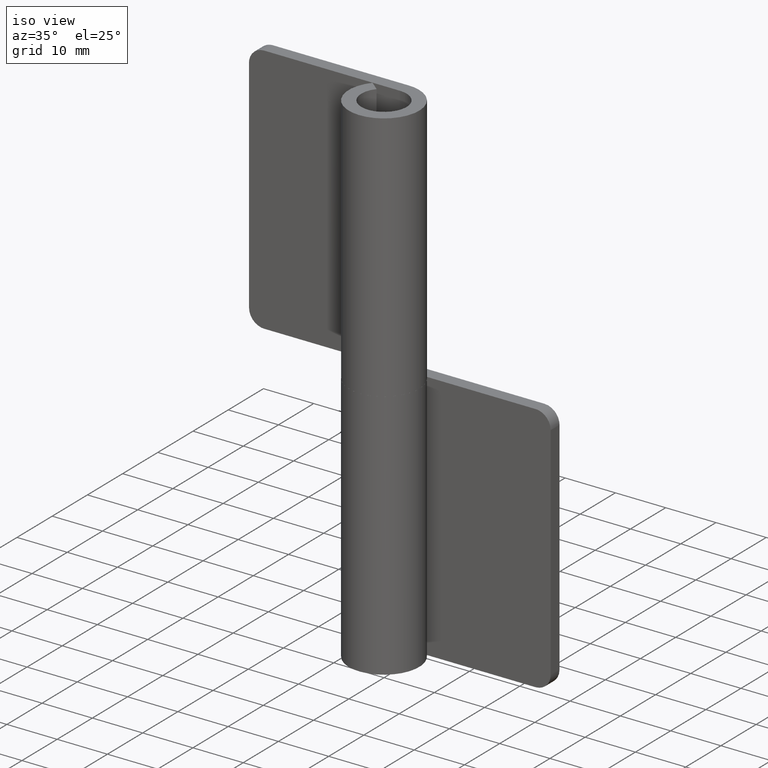
[diagram: clean part render]
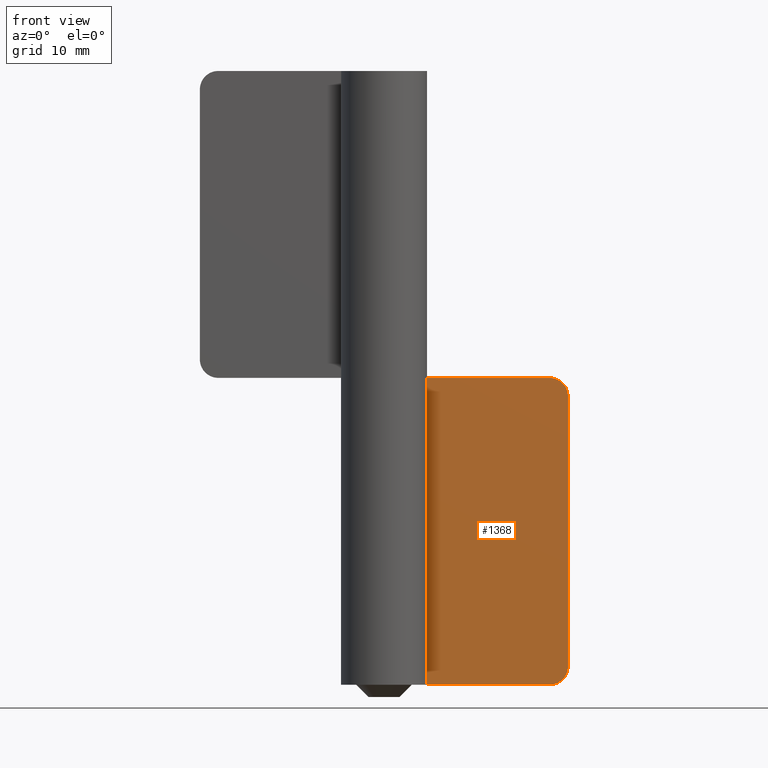
[diagram: tour spotlight — one face highlighted and labeled with its STEP entity id]
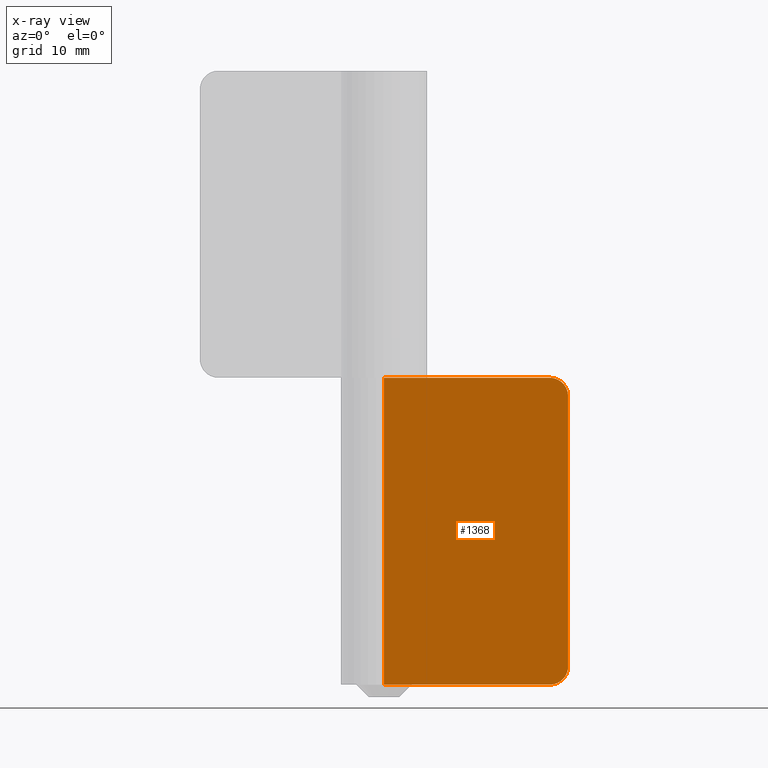
[diagram: x-ray of the same camera — body ghosted, this tour face saturated]
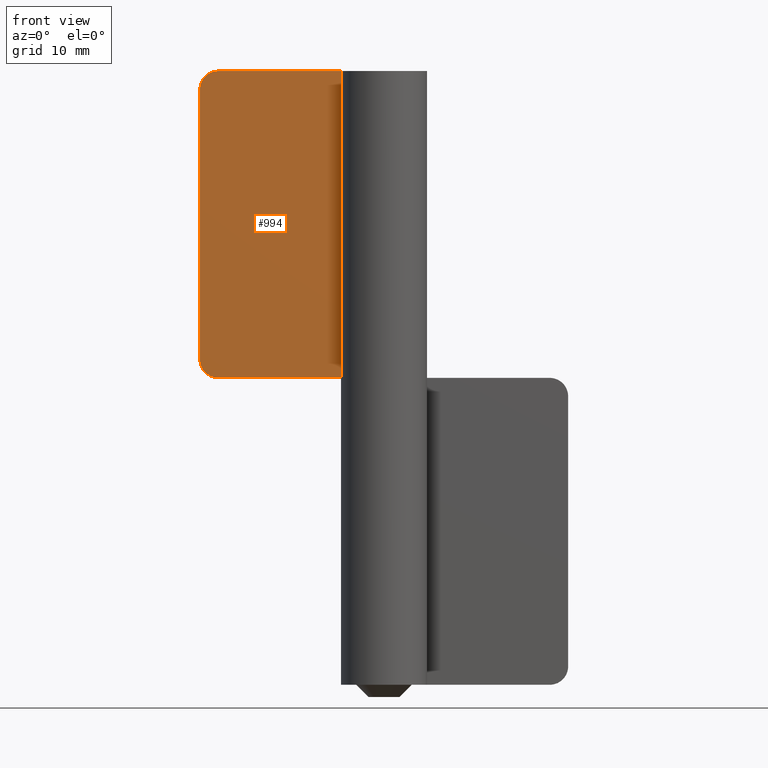
[diagram: tour spotlight — one face highlighted and labeled with its STEP entity id]
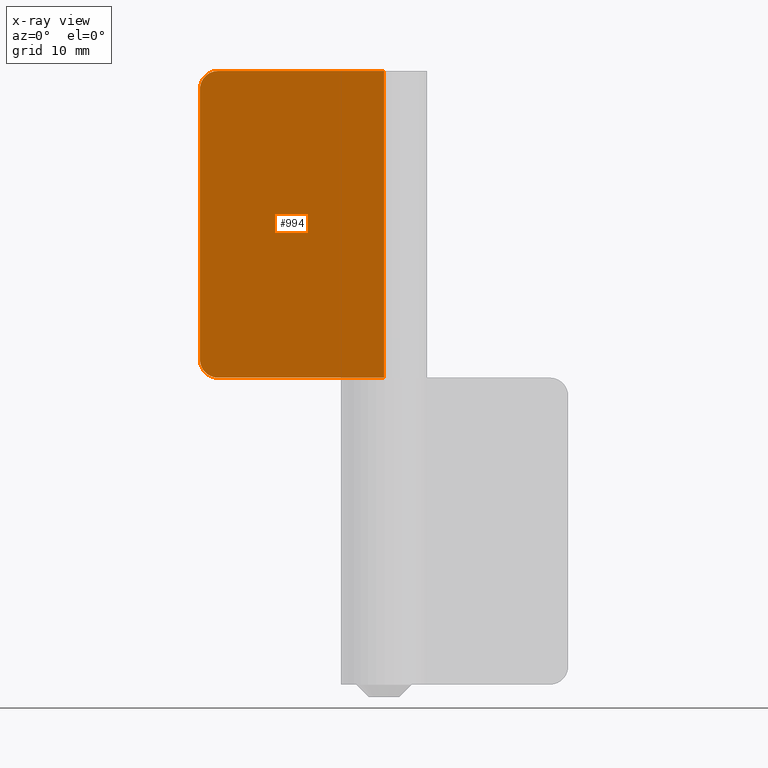
[diagram: x-ray of the same camera — body ghosted, this tour face saturated]
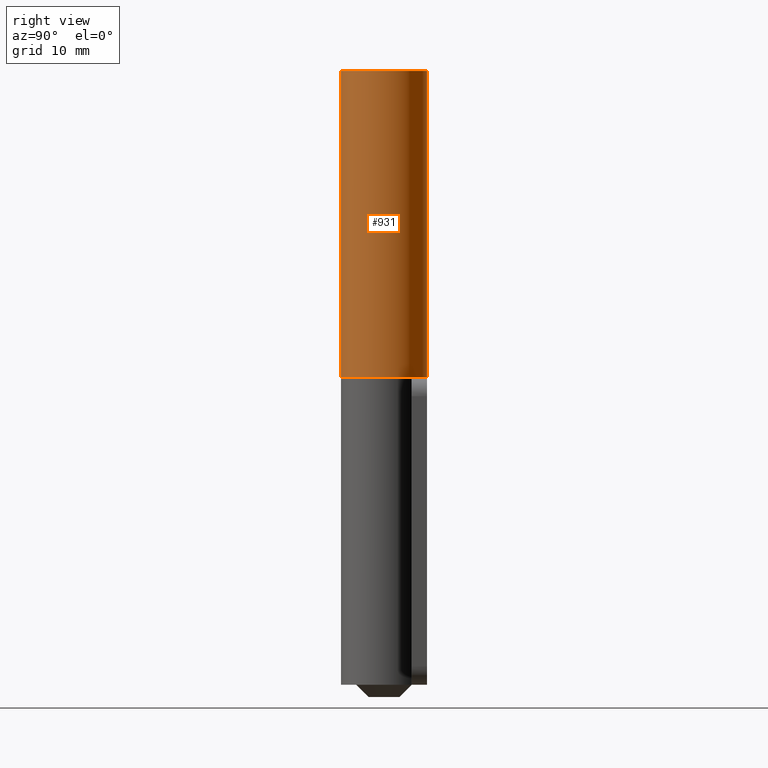
[diagram: tour spotlight — one face highlighted and labeled with its STEP entity id]
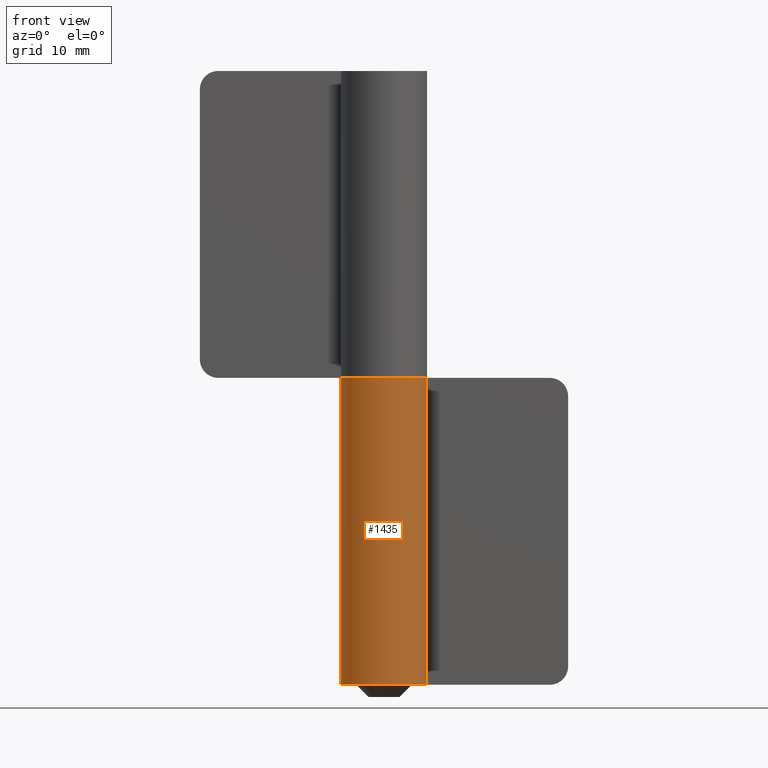
[diagram: tour spotlight — one face highlighted and labeled with its STEP entity id]
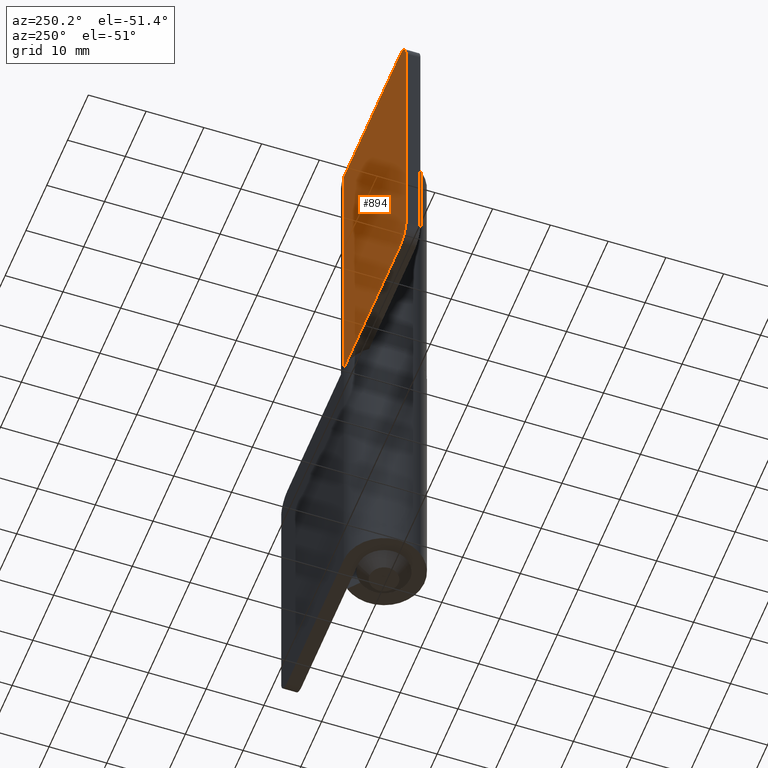
[diagram: tour spotlight — one face highlighted and labeled with its STEP entity id]
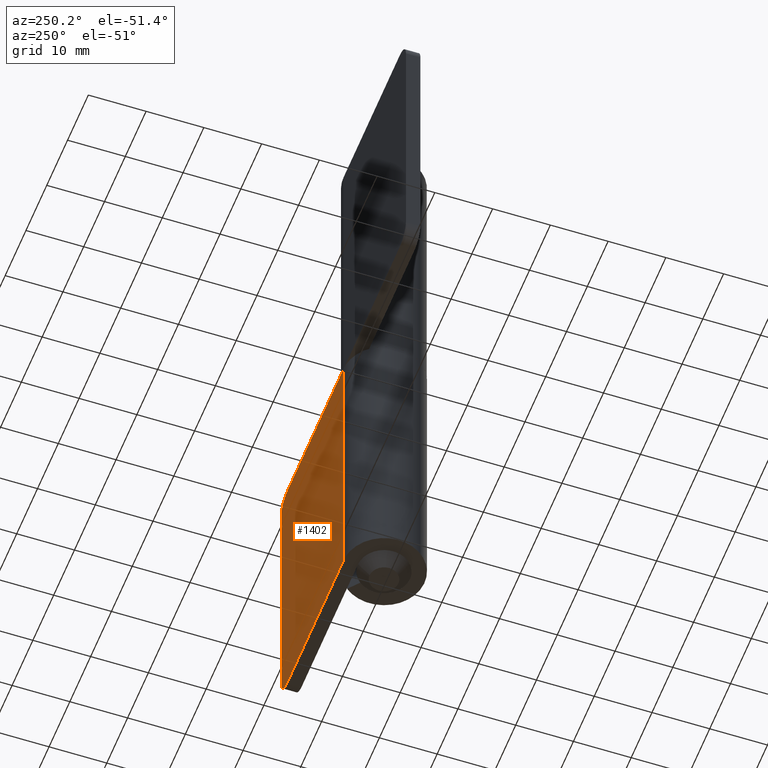
[diagram: tour spotlight — one face highlighted and labeled with its STEP entity id]
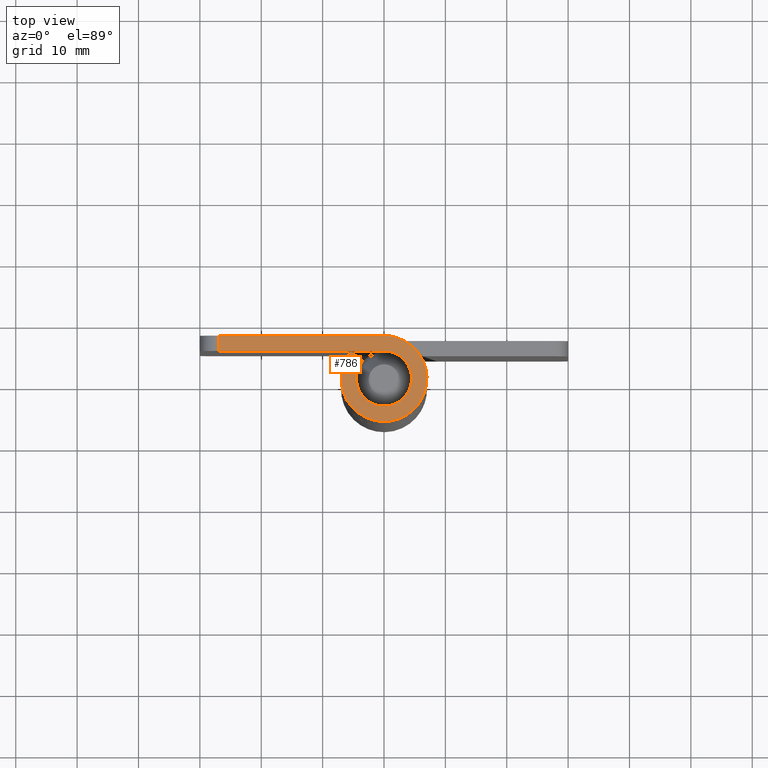
[diagram: tour spotlight — one face highlighted and labeled with its STEP entity id]
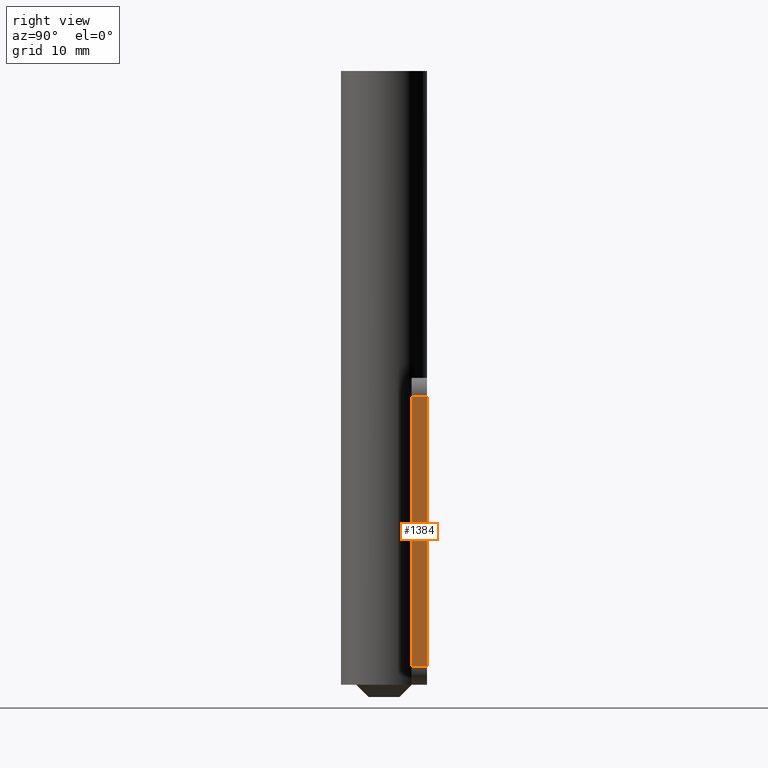
[diagram: tour spotlight — one face highlighted and labeled with its STEP entity id]
A machine part: a face-by-face anatomy tour. The part has 28 B-rep faces; the first image is the clean iso view, then the 8 largest visible faces are spotlighted one at a time (largest first), each with its STEP entity span.

Face 1 — front view, entity #1368. An x-ray twin of the same camera follows (body ghosted, this face saturated) — the face is partly hidden behind the body. In plain terms, the highlighted face is a freeform B-spline surface patch.
Definition (entity closure, byte-faithful):
#1067=CARTESIAN_POINT('',(27.0,4.500000000000000,50.0));
#1068=VERTEX_POINT('',#1067);
#1074=CARTESIAN_POINT('',(30.0,4.500000000000000,47.0));
#1075=VERTEX_POINT('',#1074);
#1076=CARTESIAN_POINT('',(30.0,4.500000000000000,47.0));
#1077=CARTESIAN_POINT('',(30.000000000000004,4.500000000000000,50.0));
#1078=CARTESIAN_POINT('',(27.0,4.500000000000000,50.0));
#1086=(BOUNDED_CURVE()B_SPLINE_CURVE(2,(#1076,#1077,#1078),.UNSPECIFIED.,.F.,.U.)CURVE()GEOMETRIC_REPRESENTATION_ITEM()QUASI_UNIFORM_CURVE()RATIONAL_B_SPLINE_CURVE((1.0,0.707106781186548,1.0))REPRESENTATION_ITEM(''));
#1087=EDGE_CURVE('',#1075,#1068,#1086,.T.);
#1128=CARTESIAN_POINT('',(30.0,4.500000000000000,3.0));
#1129=VERTEX_POINT('',#1128);
#1135=CARTESIAN_POINT('',(27.0,4.500000000000000,0.0));
#1136=VERTEX_POINT('',#1135);
#1137=CARTESIAN_POINT('',(27.0,4.500000000000000,0.0));
#1138=CARTESIAN_POINT('',(30.000000000000004,4.500000000000000,0.0));
#1139=CARTESIAN_POINT('',(30.0,4.500000000000000,3.0));
#1147=(BOUNDED_CURVE()B_SPLINE_CURVE(2,(#1137,#1138,#1139),.UNSPECIFIED.,.F.,.U.)CURVE()GEOMETRIC_REPRESENTATION_ITEM()QUASI_UNIFORM_CURVE()RATIONAL_B_SPLINE_CURVE((1.0,0.707106781186548,1.0))REPRESENTATION_ITEM(''));
#1148=EDGE_CURVE('',#1136,#1129,#1147,.T.);
#1171=CARTESIAN_POINT('',(0.0,4.500000000000000,0.0));
#1172=VERTEX_POINT('',#1171);
#1173=CARTESIAN_POINT('',(27.0,4.500000000000000,0.0));
#1174=CARTESIAN_POINT('',(0.0,4.500000000000000,0.0));
#1175=QUASI_UNIFORM_CURVE('',1,(#1173,#1174),.UNSPECIFIED.,.F.,.U.);
#1176=EDGE_CURVE('',#1136,#1172,#1175,.T.);
#1233=CARTESIAN_POINT('',(0.0,4.500000000000000,50.0));
#1234=VERTEX_POINT('',#1233);
#1235=CARTESIAN_POINT('',(27.0,4.500000000000000,50.0));
#1236=CARTESIAN_POINT('',(0.0,4.500000000000000,50.0));
#1237=QUASI_UNIFORM_CURVE('',1,(#1235,#1236),.UNSPECIFIED.,.F.,.U.);
#1238=EDGE_CURVE('',#1068,#1234,#1237,.T.);
#1341=CARTESIAN_POINT('',(0.0,4.500000000000000,50.0));
#1342=CARTESIAN_POINT('',(0.0,4.500000000000000,0.0));
#1343=QUASI_UNIFORM_CURVE('',1,(#1341,#1342),.UNSPECIFIED.,.F.,.U.);
#1344=EDGE_CURVE('',#1234,#1172,#1343,.T.);
#1351=CARTESIAN_POINT('',(-1.498499941854179,4.500000000000000,52.497499903090286));
#1352=CARTESIAN_POINT('',(-1.498499941854179,4.500000000000000,-2.497501244194806));
#1353=CARTESIAN_POINT('',(31.498500746516889,4.500000000000000,52.497499903090301));
#1354=CARTESIAN_POINT('',(31.498500746516889,4.500000000000000,-2.497501244194806));
#1355=B_SPLINE_SURFACE_WITH_KNOTS('',1,1,((#1351,#1353),(#1352,#1354)),.UNSPECIFIED.,.F.,.F.,.U.,(2,2),(2,2),(0.0,54.995001147285109),(0.0,32.997000688371067),.UNSPECIFIED.);
#1356=ORIENTED_EDGE('',*,*,#1176,.F.);
#1357=ORIENTED_EDGE('',*,*,#1148,.T.);
#1358=CARTESIAN_POINT('',(30.0,4.500000000000000,47.0));
#1359=CARTESIAN_POINT('',(30.0,4.500000000000000,3.0));
#1360=QUASI_UNIFORM_CURVE('',1,(#1358,#1359),.UNSPECIFIED.,.F.,.U.);
#1361=EDGE_CURVE('',#1075,#1129,#1360,.T.);
#1362=ORIENTED_EDGE('',*,*,#1361,.F.);
#1363=ORIENTED_EDGE('',*,*,#1087,.T.);
#1364=ORIENTED_EDGE('',*,*,#1238,.T.);
#1365=ORIENTED_EDGE('',*,*,#1344,.T.);
#1366=EDGE_LOOP('',(#1356,#1357,#1362,#1363,#1364,#1365));
#1367=FACE_OUTER_BOUND('',#1366,.T.);
#1368=ADVANCED_FACE('',(#1367),#1355,.T.);

Face 2 — front view, entity #994. An x-ray twin of the same camera follows (body ghosted, this face saturated) — the face is partly hidden behind the body. In plain terms, the highlighted face is a freeform B-spline surface patch.
Definition (entity closure, byte-faithful):
#626=CARTESIAN_POINT('',(-30.0,4.500000000000110,97.0));
#627=VERTEX_POINT('',#626);
#633=CARTESIAN_POINT('',(-27.0,4.500000000000110,100.0));
#634=VERTEX_POINT('',#633);
#635=CARTESIAN_POINT('',(-27.0,4.500000000000110,100.0));
#636=CARTESIAN_POINT('',(-30.000000000000004,4.500000000000110,100.0));
#637=CARTESIAN_POINT('',(-30.0,4.500000000000110,97.0));
#645=(BOUNDED_CURVE()B_SPLINE_CURVE(2,(#635,#636,#637),.UNSPECIFIED.,.F.,.U.)CURVE()GEOMETRIC_REPRESENTATION_ITEM()QUASI_UNIFORM_CURVE()RATIONAL_B_SPLINE_CURVE((1.0,0.707106781186548,1.0))REPRESENTATION_ITEM(''));
#646=EDGE_CURVE('',#634,#627,#645,.T.);
#687=CARTESIAN_POINT('',(-27.0,4.500000000000110,50.0));
#688=VERTEX_POINT('',#687);
#694=CARTESIAN_POINT('',(-30.0,4.500000000000110,53.0));
#695=VERTEX_POINT('',#694);
#696=CARTESIAN_POINT('',(-30.0,4.500000000000110,53.0));
#697=CARTESIAN_POINT('',(-30.000000000000004,4.500000000000110,49.999999999999986));
#698=CARTESIAN_POINT('',(-27.0,4.500000000000110,49.999999999999993));
#706=(BOUNDED_CURVE()B_SPLINE_CURVE(2,(#696,#697,#698),.UNSPECIFIED.,.F.,.U.)CURVE()GEOMETRIC_REPRESENTATION_ITEM()QUASI_UNIFORM_CURVE()RATIONAL_B_SPLINE_CURVE((1.0,0.707106781186548,1.0))REPRESENTATION_ITEM(''));
#707=EDGE_CURVE('',#695,#688,#706,.T.);
#730=CARTESIAN_POINT('',(2.755364E-016,4.500000000000000,100.0));
#731=VERTEX_POINT('',#730);
#732=CARTESIAN_POINT('',(-27.0,4.500000000000110,100.0));
#733=CARTESIAN_POINT('',(2.755364E-016,4.500000000000000,100.0));
#734=QUASI_UNIFORM_CURVE('',1,(#732,#733),.UNSPECIFIED.,.F.,.U.);
#735=EDGE_CURVE('',#634,#731,#734,.T.);
#792=CARTESIAN_POINT('',(2.755364E-016,4.500000000000000,50.0));
#793=VERTEX_POINT('',#792);
#794=CARTESIAN_POINT('',(-27.0,4.500000000000110,50.0));
#795=CARTESIAN_POINT('',(2.755364E-016,4.500000000000000,50.0));
#796=QUASI_UNIFORM_CURVE('',1,(#794,#795),.UNSPECIFIED.,.F.,.U.);
#797=EDGE_CURVE('',#688,#793,#796,.T.);
#868=CARTESIAN_POINT('',(-30.0,4.500000000000110,53.0));
#869=CARTESIAN_POINT('',(-30.0,4.500000000000110,97.0));
#870=QUASI_UNIFORM_CURVE('',1,(#868,#869),.UNSPECIFIED.,.F.,.U.);
#871=EDGE_CURVE('',#695,#627,#870,.T.);
#971=CARTESIAN_POINT('',(2.755364E-016,4.500000000000000,50.0));
#972=CARTESIAN_POINT('',(2.755364E-016,4.500000000000000,100.0));
#973=QUASI_UNIFORM_CURVE('',1,(#971,#972),.UNSPECIFIED.,.F.,.U.);
#974=EDGE_CURVE('',#793,#731,#973,.T.);
#981=CARTESIAN_POINT('',(-31.498499941854181,4.500000000000110,102.497499903090300));
#982=CARTESIAN_POINT('',(-31.498499941854181,4.500000000000110,47.502498755805192));
#983=CARTESIAN_POINT('',(1.498500746516883,4.500000000000110,102.497499903090300));
#984=CARTESIAN_POINT('',(1.498500746516883,4.500000000000110,47.502498755805192));
#985=B_SPLINE_SURFACE_WITH_KNOTS('',1,1,((#981,#983),(#982,#984)),.UNSPECIFIED.,.F.,.F.,.U.,(2,2),(2,2),(0.0,54.995001147285109),(0.0,32.997000688371060),.UNSPECIFIED.);
#986=ORIENTED_EDGE('',*,*,#871,.F.);
#987=ORIENTED_EDGE('',*,*,#707,.T.);
#988=ORIENTED_EDGE('',*,*,#797,.T.);
#989=ORIENTED_EDGE('',*,*,#974,.T.);
#990=ORIENTED_EDGE('',*,*,#735,.F.);
#991=ORIENTED_EDGE('',*,*,#646,.T.);
#992=EDGE_LOOP('',(#986,#987,#988,#989,#990,#991));
#993=FACE_OUTER_BOUND('',#992,.T.);
#994=ADVANCED_FACE('',(#993),#985,.T.);

Face 3 — right view, entity #931. In plain terms, the highlighted face is a freeform B-spline surface patch.
Definition (entity closure, byte-faithful):
#722=CARTESIAN_POINT('',(4.286122E-016,7.0,100.0));
#723=VERTEX_POINT('',#722);
#758=CARTESIAN_POINT('',(-5.403471106612770,4.450000000000105,100.0));
#759=VERTEX_POINT('',#758);
#765=CARTESIAN_POINT('',(-5.403471106612770,4.450000000000109,100.0));
#766=CARTESIAN_POINT('',(-8.966569194039693,0.123461221249967,100.000000000000010));
#767=CARTESIAN_POINT('',(-5.523944036962805,-4.299539774964649,100.0));
#768=CARTESIAN_POINT('',(-2.081318879885918,-8.722540771179265,100.000000000000010));
#769=CARTESIAN_POINT('',(2.987473849257872,-6.330481814206590,100.0));
#770=CARTESIAN_POINT('',(8.056266578401655,-3.938422857233918,100.000000000000010));
#771=CARTESIAN_POINT('',(6.830569987176992,1.530788571383035,100.0));
#772=CARTESIAN_POINT('',(5.604873395952330,7.0,100.000000000000010));
#773=CARTESIAN_POINT('',(0.0,7.0,100.0));
#781=(BOUNDED_CURVE()B_SPLINE_CURVE(2,(#765,#766,#767,#768,#769,#770,#771,#772,#773),.UNSPECIFIED.,.F.,.U.)B_SPLINE_CURVE_WITH_KNOTS((3,2,2,2,3),(0.0,0.250000000000000,0.500000000000000,0.750000000000000,1.0),.UNSPECIFIED.)CURVE()GEOMETRIC_REPRESENTATION_ITEM()RATIONAL_B_SPLINE_CURVE((1.0,0.780603638739325,1.0,0.780603638739325,1.0,0.780603638739325,1.0,0.780603638739325,1.0))REPRESENTATION_ITEM(''));
#782=EDGE_CURVE('',#759,#723,#781,.T.);
#800=CARTESIAN_POINT('',(4.286122E-016,7.0,50.0));
#801=VERTEX_POINT('',#800);
#807=CARTESIAN_POINT('',(-5.403471106612770,4.450000000000105,50.0));
#808=VERTEX_POINT('',#807);
#809=CARTESIAN_POINT('',(-5.403471106612770,4.450000000000109,50.0));
#810=CARTESIAN_POINT('',(-8.966569194039693,0.123461221249967,49.999999999999993));
#811=CARTESIAN_POINT('',(-5.523944036962805,-4.299539774964649,50.0));
#812=CARTESIAN_POINT('',(-2.081318879885918,-8.722540771179265,49.999999999999993));
#813=CARTESIAN_POINT('',(2.987473849257872,-6.330481814206590,50.0));
#814=CARTESIAN_POINT('',(8.056266578401655,-3.938422857233918,49.999999999999993));
#815=CARTESIAN_POINT('',(6.830569987176992,1.530788571383035,50.0));
#816=CARTESIAN_POINT('',(5.604873395952330,7.0,49.999999999999993));
#817=CARTESIAN_POINT('',(0.0,7.0,50.0));
#825=(BOUNDED_CURVE()B_SPLINE_CURVE(2,(#809,#810,#811,#812,#813,#814,#815,#816,#817),.UNSPECIFIED.,.F.,.U.)B_SPLINE_CURVE_WITH_KNOTS((3,2,2,2,3),(0.0,0.250000000000000,0.500000000000000,0.750000000000000,1.0),.UNSPECIFIED.)CURVE()GEOMETRIC_REPRESENTATION_ITEM()RATIONAL_B_SPLINE_CURVE((1.0,0.780603638739325,1.0,0.780603638739325,1.0,0.780603638739325,1.0,0.780603638739325,1.0))REPRESENTATION_ITEM(''));
#826=EDGE_CURVE('',#808,#801,#825,.T.);
#887=CARTESIAN_POINT('',(4.286122E-016,7.0,50.0));
#888=CARTESIAN_POINT('',(4.286122E-016,7.0,100.0));
#889=QUASI_UNIFORM_CURVE('',1,(#887,#888),.UNSPECIFIED.,.F.,.U.);
#890=EDGE_CURVE('',#801,#723,#889,.T.);
#895=CARTESIAN_POINT('',(-0.247595327684960,6.995619811975815,48.749999999999993));
#896=CARTESIAN_POINT('',(-0.247595327684960,6.995619811975815,101.281250000000000));
#897=CARTESIAN_POINT('',(5.519148624672452,7.199721649544934,48.750000000000007));
#898=CARTESIAN_POINT('',(5.519148624672452,7.199721649544934,101.281250000000010));
#899=CARTESIAN_POINT('',(6.819847156765002,1.577873492509548,48.749999999999993));
#900=CARTESIAN_POINT('',(6.819847156765002,1.577873492509548,101.281250000000000));
#901=CARTESIAN_POINT('',(8.120545688857552,-4.043974664525839,48.750000000000007));
#902=CARTESIAN_POINT('',(8.120545688857552,-4.043974664525839,101.281250000000010));
#903=CARTESIAN_POINT('',(2.850171696892792,-6.393474900101761,48.749999999999993));
#904=CARTESIAN_POINT('',(2.850171696892792,-6.393474900101761,101.281250000000000));
#905=CARTESIAN_POINT('',(-2.420202295071969,-8.742975135677686,48.750000000000007));
#906=CARTESIAN_POINT('',(-2.420202295071969,-8.742975135677686,101.281250000000010));
#907=CARTESIAN_POINT('',(-5.732170360495452,-4.017738537816693,48.749999999999993));
#908=CARTESIAN_POINT('',(-5.732170360495452,-4.017738537816693,101.281250000000000));
#909=CARTESIAN_POINT('',(-9.044138425918936,0.707498060044300,48.750000000000007));
#910=CARTESIAN_POINT('',(-9.044138425918936,0.707498060044300,101.281250000000010));
#911=CARTESIAN_POINT('',(-5.037671032519481,4.860233591928901,48.749999999999993));
#912=CARTESIAN_POINT('',(-5.037671032519481,4.860233591928901,101.281250000000000));
#920=(BOUNDED_SURFACE()B_SPLINE_SURFACE(1,2,((#895,#897,#899,#901,#903,#905,#907,#909,#911),(#896,#898,#900,#902,#904,#906,#908,#910,#912)),.UNSPECIFIED.,.F.,.F.,.U.)B_SPLINE_SURFACE_WITH_KNOTS((2,2),(3,2,2,2,3),(0.0,52.531250000000028),(0.0,10.053027224154089,20.106054448308171,30.159081672462261,40.212108896616343),.UNSPECIFIED.)GEOMETRIC_REPRESENTATION_ITEM()RATIONAL_B_SPLINE_SURFACE(((1.0,0.771624583387720,1.0,0.771624583387720,1.0,0.771624583387720,1.0,0.771624583387720,1.0),(1.0,0.771624583387720,1.0,0.771624583387720,1.0,0.771624583387720,1.0,0.771624583387720,1.0)))REPRESENTATION_ITEM('')SURFACE());
#921=ORIENTED_EDGE('',*,*,#782,.F.);
#922=CARTESIAN_POINT('',(-5.403471106612770,4.450000000000105,50.0));
#923=CARTESIAN_POINT('',(-5.403471106612770,4.450000000000105,100.0));
#924=QUASI_UNIFORM_CURVE('',1,(#922,#923),.UNSPECIFIED.,.F.,.U.);
#925=EDGE_CURVE('',#808,#759,#924,.T.);
#926=ORIENTED_EDGE('',*,*,#925,.F.);
#927=ORIENTED_EDGE('',*,*,#826,.T.);
#928=ORIENTED_EDGE('',*,*,#890,.T.);
#929=EDGE_LOOP('',(#921,#926,#927,#928));
#930=FACE_OUTER_BOUND('',#929,.T.);
#931=ADVANCED_FACE('',(#930),#920,.T.);

Face 4 — front view, entity #1435. In plain terms, the highlighted face is a freeform B-spline surface patch.
Definition (entity closure, byte-faithful):
#1163=CARTESIAN_POINT('',(0.0,7.0,0.0));
#1164=VERTEX_POINT('',#1163);
#1199=CARTESIAN_POINT('',(5.403471106612860,4.450000000000000,0.0));
#1200=VERTEX_POINT('',#1199);
#1206=CARTESIAN_POINT('',(5.403471106612857,4.450000000000004,0.0));
#1207=CARTESIAN_POINT('',(8.966569194039675,0.123461221249817,0.0));
#1208=CARTESIAN_POINT('',(5.523944036962744,-4.299539774964727,0.0));
#1209=CARTESIAN_POINT('',(2.081318879885813,-8.722540771179270,0.0));
#1210=CARTESIAN_POINT('',(-2.987473849257928,-6.330481814206563,0.0));
#1211=CARTESIAN_POINT('',(-8.056266578401672,-3.938422857233855,0.0));
#1212=CARTESIAN_POINT('',(-6.830569987176983,1.530788571383071,0.0));
#1213=CARTESIAN_POINT('',(-5.604873395952298,7.0,0.0));
#1214=CARTESIAN_POINT('',(0.0,7.0,0.0));
#1222=(BOUNDED_CURVE()B_SPLINE_CURVE(2,(#1206,#1207,#1208,#1209,#1210,#1211,#1212,#1213,#1214),.UNSPECIFIED.,.F.,.U.)B_SPLINE_CURVE_WITH_KNOTS((3,2,2,2,3),(0.0,0.250000000000000,0.500000000000000,0.750000000000000,1.0),.UNSPECIFIED.)CURVE()GEOMETRIC_REPRESENTATION_ITEM()RATIONAL_B_SPLINE_CURVE((1.0,0.780603638739326,1.0,0.780603638739326,1.0,0.780603638739326,1.0,0.780603638739326,1.0))REPRESENTATION_ITEM(''));
#1223=EDGE_CURVE('',#1200,#1164,#1222,.T.);
#1241=CARTESIAN_POINT('',(0.0,7.0,50.0));
#1242=VERTEX_POINT('',#1241);
#1248=CARTESIAN_POINT('',(5.403471106612860,4.450000000000000,50.0));
#1249=VERTEX_POINT('',#1248);
#1250=CARTESIAN_POINT('',(5.403471106612857,4.450000000000004,50.0));
#1251=CARTESIAN_POINT('',(8.966569194039675,0.123461221249817,50.0));
#1252=CARTESIAN_POINT('',(5.523944036962744,-4.299539774964727,50.0));
#1253=CARTESIAN_POINT('',(2.081318879885813,-8.722540771179270,50.0));
#1254=CARTESIAN_POINT('',(-2.987473849257928,-6.330481814206563,50.0));
#1255=CARTESIAN_POINT('',(-8.056266578401672,-3.938422857233855,50.0));
#1256=CARTESIAN_POINT('',(-6.830569987176983,1.530788571383071,50.0));
#1257=CARTESIAN_POINT('',(-5.604873395952298,7.0,50.0));
#1258=CARTESIAN_POINT('',(0.0,7.0,50.0));
#1266=(BOUNDED_CURVE()B_SPLINE_CURVE(2,(#1250,#1251,#1252,#1253,#1254,#1255,#1256,#1257,#1258),.UNSPECIFIED.,.F.,.U.)B_SPLINE_CURVE_WITH_KNOTS((3,2,2,2,3),(0.0,0.250000000000000,0.500000000000000,0.750000000000000,1.0),.UNSPECIFIED.)CURVE()GEOMETRIC_REPRESENTATION_ITEM()RATIONAL_B_SPLINE_CURVE((1.0,0.780603638739326,1.0,0.780603638739326,1.0,0.780603638739326,1.0,0.780603638739326,1.0))REPRESENTATION_ITEM(''));
#1267=EDGE_CURVE('',#1249,#1242,#1266,.T.);
#1310=CARTESIAN_POINT('',(5.403471106612860,4.450000000000000,50.0));
#1311=CARTESIAN_POINT('',(5.403471106612860,4.450000000000000,0.0));
#1312=QUASI_UNIFORM_CURVE('',1,(#1310,#1311),.UNSPECIFIED.,.F.,.U.);
#1313=EDGE_CURVE('',#1249,#1200,#1312,.T.);
#1393=CARTESIAN_POINT('',(0.0,7.0,50.0));
#1394=CARTESIAN_POINT('',(0.0,7.0,0.0));
#1395=QUASI_UNIFORM_CURVE('',1,(#1393,#1394),.UNSPECIFIED.,.F.,.U.);
#1396=EDGE_CURVE('',#1242,#1164,#1395,.T.);
#1403=CARTESIAN_POINT('',(0.247595327685098,6.995619811975811,51.250000000000000));
#1404=CARTESIAN_POINT('',(0.247595327685098,6.995619811975811,-1.281250000000007));
#1405=CARTESIAN_POINT('',(-5.519148624672312,7.199721649545042,51.250000000000000));
#1406=CARTESIAN_POINT('',(-5.519148624672312,7.199721649545042,-1.281250000000007));
#1407=CARTESIAN_POINT('',(-6.819847156764972,1.577873492509682,51.250000000000000));
#1408=CARTESIAN_POINT('',(-6.819847156764972,1.577873492509682,-1.281250000000007));
#1409=CARTESIAN_POINT('',(-8.120545688857632,-4.043974664525680,51.250000000000000));
#1410=CARTESIAN_POINT('',(-8.120545688857632,-4.043974664525680,-1.281250000000007));
#1411=CARTESIAN_POINT('',(-2.850171696892917,-6.393474900101706,51.250000000000000));
#1412=CARTESIAN_POINT('',(-2.850171696892917,-6.393474900101706,-1.281250000000007));
#1413=CARTESIAN_POINT('',(2.420202295071798,-8.742975135677733,51.250000000000000));
#1414=CARTESIAN_POINT('',(2.420202295071798,-8.742975135677733,-1.281250000000007));
#1415=CARTESIAN_POINT('',(5.732170360495373,-4.017738537816806,51.250000000000000));
#1416=CARTESIAN_POINT('',(5.732170360495373,-4.017738537816806,-1.281250000000007));
#1417=CARTESIAN_POINT('',(9.044138425918950,0.707498060044121,51.250000000000000));
#1418=CARTESIAN_POINT('',(9.044138425918950,0.707498060044121,-1.281250000000007));
#1419=CARTESIAN_POINT('',(5.037671032519576,4.860233591928800,51.250000000000000));
#1420=CARTESIAN_POINT('',(5.037671032519576,4.860233591928800,-1.281250000000007));
#1428=(BOUNDED_SURFACE()B_SPLINE_SURFACE(1,2,((#1403,#1405,#1407,#1409,#1411,#1413,#1415,#1417,#1419),(#1404,#1406,#1408,#1410,#1412,#1414,#1416,#1418,#1420)),.UNSPECIFIED.,.F.,.F.,.U.)B_SPLINE_SURFACE_WITH_KNOTS((2,2),(3,2,2,2,3),(0.0,52.531250000000007),(0.0,10.053027224154080,20.106054448308171,30.159081672462250,40.212108896616343),.UNSPECIFIED.)GEOMETRIC_REPRESENTATION_ITEM()RATIONAL_B_SPLINE_SURFACE(((1.0,0.771624583387720,1.0,0.771624583387720,1.0,0.771624583387720,1.0,0.771624583387720,1.0),(1.0,0.771624583387720,1.0,0.771624583387720,1.0,0.771624583387720,1.0,0.771624583387720,1.0)))REPRESENTATION_ITEM('')SURFACE());
#1429=ORIENTED_EDGE('',*,*,#1223,.F.);
#1430=ORIENTED_EDGE('',*,*,#1313,.F.);
#1431=ORIENTED_EDGE('',*,*,#1267,.T.);
#1432=ORIENTED_EDGE('',*,*,#1396,.T.);
#1433=EDGE_LOOP('',(#1429,#1430,#1431,#1432));
#1434=FACE_OUTER_BOUND('',#1433,.T.);
#1435=ADVANCED_FACE('',(#1434),#1428,.T.);

Face 5 — auxiliary view, entity #894. In plain terms, the highlighted face is a freeform B-spline surface patch.
Definition (entity closure, byte-faithful):
#609=CARTESIAN_POINT('',(-30.0,7.000000000000110,97.0));
#610=VERTEX_POINT('',#609);
#611=CARTESIAN_POINT('',(-27.0,7.000000000000110,100.0));
#612=VERTEX_POINT('',#611);
#613=CARTESIAN_POINT('',(-30.0,7.000000000000110,97.0));
#614=CARTESIAN_POINT('',(-30.000000000000004,7.000000000000111,100.0));
#615=CARTESIAN_POINT('',(-27.0,7.000000000000110,100.0));
#623=(BOUNDED_CURVE()B_SPLINE_CURVE(2,(#613,#614,#615),.UNSPECIFIED.,.F.,.U.)CURVE()GEOMETRIC_REPRESENTATION_ITEM()QUASI_UNIFORM_CURVE()RATIONAL_B_SPLINE_CURVE((1.0,0.707106781186548,1.0))REPRESENTATION_ITEM(''));
#624=EDGE_CURVE('',#610,#612,#623,.T.);
#670=CARTESIAN_POINT('',(-27.0,7.000000000000110,50.0));
#671=VERTEX_POINT('',#670);
#672=CARTESIAN_POINT('',(-30.0,7.000000000000110,53.0));
#673=VERTEX_POINT('',#672);
#674=CARTESIAN_POINT('',(-27.0,7.000000000000110,49.999999999999993));
#675=CARTESIAN_POINT('',(-30.000000000000004,7.000000000000111,49.999999999999986));
#676=CARTESIAN_POINT('',(-30.0,7.000000000000110,53.0));
#684=(BOUNDED_CURVE()B_SPLINE_CURVE(2,(#674,#675,#676),.UNSPECIFIED.,.F.,.U.)CURVE()GEOMETRIC_REPRESENTATION_ITEM()QUASI_UNIFORM_CURVE()RATIONAL_B_SPLINE_CURVE((1.0,0.707106781186548,1.0))REPRESENTATION_ITEM(''));
#685=EDGE_CURVE('',#671,#673,#684,.T.);
#722=CARTESIAN_POINT('',(4.286122E-016,7.0,100.0));
#723=VERTEX_POINT('',#722);
#724=CARTESIAN_POINT('',(4.286122E-016,7.0,100.0));
#725=CARTESIAN_POINT('',(-27.0,7.000000000000110,100.0));
#726=QUASI_UNIFORM_CURVE('',1,(#724,#725),.UNSPECIFIED.,.F.,.U.);
#727=EDGE_CURVE('',#723,#612,#726,.T.);
#800=CARTESIAN_POINT('',(4.286122E-016,7.0,50.0));
#801=VERTEX_POINT('',#800);
#802=CARTESIAN_POINT('',(4.286122E-016,7.0,50.0));
#803=CARTESIAN_POINT('',(-27.0,7.000000000000110,50.0));
#804=QUASI_UNIFORM_CURVE('',1,(#802,#803),.UNSPECIFIED.,.F.,.U.);
#805=EDGE_CURVE('',#801,#671,#804,.T.);
#862=CARTESIAN_POINT('',(-30.0,7.000000000000110,53.0));
#863=CARTESIAN_POINT('',(-30.0,7.000000000000110,97.0));
#864=QUASI_UNIFORM_CURVE('',1,(#862,#863),.UNSPECIFIED.,.F.,.U.);
#865=EDGE_CURVE('',#673,#610,#864,.T.);
#877=CARTESIAN_POINT('',(-31.498499941854181,7.000000000000110,47.502500096909699));
#878=CARTESIAN_POINT('',(-31.498499941854181,7.000000000000110,102.497501244194790));
#879=CARTESIAN_POINT('',(1.498500746516883,7.000000000000110,47.502500096909699));
#880=CARTESIAN_POINT('',(1.498500746516883,7.000000000000110,102.497501244194790));
#881=B_SPLINE_SURFACE_WITH_KNOTS('',1,1,((#877,#879),(#878,#880)),.UNSPECIFIED.,.F.,.F.,.U.,(2,2),(2,2),(0.0,54.995001147285109),(0.0,32.997000688371060),.UNSPECIFIED.);
#882=ORIENTED_EDGE('',*,*,#805,.T.);
#883=ORIENTED_EDGE('',*,*,#685,.T.);
#884=ORIENTED_EDGE('',*,*,#865,.T.);
#885=ORIENTED_EDGE('',*,*,#624,.T.);
#886=ORIENTED_EDGE('',*,*,#727,.F.);
#887=CARTESIAN_POINT('',(4.286122E-016,7.0,50.0));
#888=CARTESIAN_POINT('',(4.286122E-016,7.0,100.0));
#889=QUASI_UNIFORM_CURVE('',1,(#887,#888),.UNSPECIFIED.,.F.,.U.);
#890=EDGE_CURVE('',#801,#723,#889,.T.);
#891=ORIENTED_EDGE('',*,*,#890,.F.);
#892=EDGE_LOOP('',(#882,#883,#884,#885,#886,#891));
#893=FACE_OUTER_BOUND('',#892,.T.);
#894=ADVANCED_FACE('',(#893),#881,.T.);

Face 6 — auxiliary view, entity #1402. In plain terms, the highlighted face is a freeform B-spline surface patch.
Definition (entity closure, byte-faithful):
#1050=CARTESIAN_POINT('',(27.0,7.0,50.0));
#1051=VERTEX_POINT('',#1050);
#1052=CARTESIAN_POINT('',(30.0,7.0,47.0));
#1053=VERTEX_POINT('',#1052);
#1054=CARTESIAN_POINT('',(27.0,7.0,50.0));
#1055=CARTESIAN_POINT('',(30.000000000000004,6.999999999999999,50.0));
#1056=CARTESIAN_POINT('',(30.0,7.0,47.0));
#1064=(BOUNDED_CURVE()B_SPLINE_CURVE(2,(#1054,#1055,#1056),.UNSPECIFIED.,.F.,.U.)CURVE()GEOMETRIC_REPRESENTATION_ITEM()QUASI_UNIFORM_CURVE()RATIONAL_B_SPLINE_CURVE((1.0,0.707106781186548,1.0))REPRESENTATION_ITEM(''));
#1065=EDGE_CURVE('',#1051,#1053,#1064,.T.);
#1111=CARTESIAN_POINT('',(30.0,7.0,3.0));
#1112=VERTEX_POINT('',#1111);
#1113=CARTESIAN_POINT('',(27.0,7.0,0.0));
#1114=VERTEX_POINT('',#1113);
#1115=CARTESIAN_POINT('',(30.0,7.0,3.0));
#1116=CARTESIAN_POINT('',(30.000000000000004,6.999999999999999,0.0));
#1117=CARTESIAN_POINT('',(27.0,7.0,0.0));
#1125=(BOUNDED_CURVE()B_SPLINE_CURVE(2,(#1115,#1116,#1117),.UNSPECIFIED.,.F.,.U.)CURVE()GEOMETRIC_REPRESENTATION_ITEM()QUASI_UNIFORM_CURVE()RATIONAL_B_SPLINE_CURVE((1.0,0.707106781186548,1.0))REPRESENTATION_ITEM(''));
#1126=EDGE_CURVE('',#1112,#1114,#1125,.T.);
#1163=CARTESIAN_POINT('',(0.0,7.0,0.0));
#1164=VERTEX_POINT('',#1163);
#1165=CARTESIAN_POINT('',(0.0,7.0,0.0));
#1166=CARTESIAN_POINT('',(27.0,7.0,0.0));
#1167=QUASI_UNIFORM_CURVE('',1,(#1165,#1166),.UNSPECIFIED.,.F.,.U.);
#1168=EDGE_CURVE('',#1164,#1114,#1167,.T.);
#1241=CARTESIAN_POINT('',(0.0,7.0,50.0));
#1242=VERTEX_POINT('',#1241);
#1243=CARTESIAN_POINT('',(0.0,7.0,50.0));
#1244=CARTESIAN_POINT('',(27.0,7.0,50.0));
#1245=QUASI_UNIFORM_CURVE('',1,(#1243,#1244),.UNSPECIFIED.,.F.,.U.);
#1246=EDGE_CURVE('',#1242,#1051,#1245,.T.);
#1376=CARTESIAN_POINT('',(30.0,7.0,47.0));
#1377=CARTESIAN_POINT('',(30.0,7.0,3.0));
#1378=QUASI_UNIFORM_CURVE('',1,(#1376,#1377),.UNSPECIFIED.,.F.,.U.);
#1379=EDGE_CURVE('',#1053,#1112,#1378,.T.);
#1385=CARTESIAN_POINT('',(-1.498499941854179,7.0,-2.497499903090299));
#1386=CARTESIAN_POINT('',(-1.498499941854179,7.0,52.497501244194808));
#1387=CARTESIAN_POINT('',(31.498500746516889,7.0,-2.497499903090299));
#1388=CARTESIAN_POINT('',(31.498500746516889,7.0,52.497501244194808));
#1389=B_SPLINE_SURFACE_WITH_KNOTS('',1,1,((#1385,#1387),(#1386,#1388)),.UNSPECIFIED.,.F.,.F.,.U.,(2,2),(2,2),(0.0,54.995001147285109),(0.0,32.997000688371067),.UNSPECIFIED.);
#1390=ORIENTED_EDGE('',*,*,#1379,.T.);
#1391=ORIENTED_EDGE('',*,*,#1126,.T.);
#1392=ORIENTED_EDGE('',*,*,#1168,.F.);
#1393=CARTESIAN_POINT('',(0.0,7.0,50.0));
#1394=CARTESIAN_POINT('',(0.0,7.0,0.0));
#1395=QUASI_UNIFORM_CURVE('',1,(#1393,#1394),.UNSPECIFIED.,.F.,.U.);
#1396=EDGE_CURVE('',#1242,#1164,#1395,.T.);
#1397=ORIENTED_EDGE('',*,*,#1396,.F.);
#1398=ORIENTED_EDGE('',*,*,#1246,.T.);
#1399=ORIENTED_EDGE('',*,*,#1065,.T.);
#1400=EDGE_LOOP('',(#1390,#1391,#1392,#1397,#1398,#1399));
#1401=FACE_OUTER_BOUND('',#1400,.T.);
#1402=ADVANCED_FACE('',(#1401),#1389,.T.);

Face 7 — top view, entity #786. In plain terms, the highlighted face is a freeform B-spline surface patch.
Definition (entity closure, byte-faithful):
#611=CARTESIAN_POINT('',(-27.0,7.000000000000110,100.0));
#612=VERTEX_POINT('',#611);
#633=CARTESIAN_POINT('',(-27.0,4.500000000000110,100.0));
#634=VERTEX_POINT('',#633);
#648=CARTESIAN_POINT('',(-27.0,7.000000000000110,100.0));
#649=CARTESIAN_POINT('',(-27.0,4.500000000000110,100.0));
#650=QUASI_UNIFORM_CURVE('',1,(#648,#649),.UNSPECIFIED.,.F.,.U.);
#651=EDGE_CURVE('',#612,#634,#650,.T.);
#717=CARTESIAN_POINT('',(-28.697869880280550,7.698157968271238,100.0));
#718=CARTESIAN_POINT('',(8.689261105563602,7.698157968271238,100.0));
#719=CARTESIAN_POINT('',(-28.697869880280550,-7.675295386683966,100.0));
#720=CARTESIAN_POINT('',(8.689261105563602,-7.675295386683966,100.0));
#721=B_SPLINE_SURFACE_WITH_KNOTS('',1,1,((#717,#719),(#718,#720)),.UNSPECIFIED.,.F.,.F.,.U.,(2,2),(2,2),(0.0,37.387130985844152),(0.0,15.373453354955201),.UNSPECIFIED.);
#722=CARTESIAN_POINT('',(4.286122E-016,7.0,100.0));
#723=VERTEX_POINT('',#722);
#724=CARTESIAN_POINT('',(4.286122E-016,7.0,100.0));
#725=CARTESIAN_POINT('',(-27.0,7.000000000000110,100.0));
#726=QUASI_UNIFORM_CURVE('',1,(#724,#725),.UNSPECIFIED.,.F.,.U.);
#727=EDGE_CURVE('',#723,#612,#726,.T.);
#728=ORIENTED_EDGE('',*,*,#727,.T.);
#729=ORIENTED_EDGE('',*,*,#651,.T.);
#730=CARTESIAN_POINT('',(2.755364E-016,4.500000000000000,100.0));
#731=VERTEX_POINT('',#730);
#732=CARTESIAN_POINT('',(-27.0,4.500000000000110,100.0));
#733=CARTESIAN_POINT('',(2.755364E-016,4.500000000000000,100.0));
#734=QUASI_UNIFORM_CURVE('',1,(#732,#733),.UNSPECIFIED.,.F.,.U.);
#735=EDGE_CURVE('',#634,#731,#734,.T.);
#736=ORIENTED_EDGE('',*,*,#735,.T.);
#737=CARTESIAN_POINT('',(-3.473659997108210,2.860714285714355,100.0));
#738=VERTEX_POINT('',#737);
#739=CARTESIAN_POINT('',(-3.473659997108209,2.860714285714355,100.0));
#740=CARTESIAN_POINT('',(-5.764223053311231,0.079367927946408,100.0));
#741=CARTESIAN_POINT('',(-3.551106880904661,-2.763989855334417,100.0));
#742=CARTESIAN_POINT('',(-1.337990708498090,-5.607347638615242,100.0));
#743=CARTESIAN_POINT('',(1.920518903094346,-4.069595451989950,100.0));
#744=CARTESIAN_POINT('',(5.179028514686777,-2.531843265364661,100.0));
#745=CARTESIAN_POINT('',(4.391080706042351,0.984078367317665,100.0));
#746=CARTESIAN_POINT('',(3.603132897397925,4.500000000000001,100.0));
#747=CARTESIAN_POINT('',(0.0,4.500000000000000,100.0));
#755=(BOUNDED_CURVE()B_SPLINE_CURVE(2,(#739,#740,#741,#742,#743,#744,#745,#746,#747),.UNSPECIFIED.,.F.,.U.)B_SPLINE_CURVE_WITH_KNOTS((3,2,2,2,3),(0.0,0.250000000000000,0.500000000000000,0.750000000000000,1.0),.UNSPECIFIED.)CURVE()GEOMETRIC_REPRESENTATION_ITEM()RATIONAL_B_SPLINE_CURVE((1.0,0.780603638739325,1.0,0.780603638739325,1.0,0.780603638739325,1.0,0.780603638739325,1.0))REPRESENTATION_ITEM(''));
#756=EDGE_CURVE('',#738,#731,#755,.T.);
#757=ORIENTED_EDGE('',*,*,#756,.F.);
#758=CARTESIAN_POINT('',(-5.403471106612770,4.450000000000105,100.0));
#759=VERTEX_POINT('',#758);
#760=CARTESIAN_POINT('',(-3.473659997108210,2.860714285714355,100.0));
#761=CARTESIAN_POINT('',(-5.403471106612770,4.450000000000105,100.0));
#762=QUASI_UNIFORM_CURVE('',1,(#760,#761),.UNSPECIFIED.,.F.,.U.);
#763=EDGE_CURVE('',#738,#759,#762,.T.);
#764=ORIENTED_EDGE('',*,*,#763,.T.);
#765=CARTESIAN_POINT('',(-5.403471106612770,4.450000000000109,100.0));
#766=CARTESIAN_POINT('',(-8.966569194039693,0.123461221249967,100.000000000000010));
#767=CARTESIAN_POINT('',(-5.523944036962805,-4.299539774964649,100.0));
#768=CARTESIAN_POINT('',(-2.081318879885918,-8.722540771179265,100.000000000000010));
#769=CARTESIAN_POINT('',(2.987473849257872,-6.330481814206590,100.0));
#770=CARTESIAN_POINT('',(8.056266578401655,-3.938422857233918,100.000000000000010));
#771=CARTESIAN_POINT('',(6.830569987176992,1.530788571383035,100.0));
#772=CARTESIAN_POINT('',(5.604873395952330,7.0,100.000000000000010));
#773=CARTESIAN_POINT('',(0.0,7.0,100.0));
#781=(BOUNDED_CURVE()B_SPLINE_CURVE(2,(#765,#766,#767,#768,#769,#770,#771,#772,#773),.UNSPECIFIED.,.F.,.U.)B_SPLINE_CURVE_WITH_KNOTS((3,2,2,2,3),(0.0,0.250000000000000,0.500000000000000,0.750000000000000,1.0),.UNSPECIFIED.)CURVE()GEOMETRIC_REPRESENTATION_ITEM()RATIONAL_B_SPLINE_CURVE((1.0,0.780603638739325,1.0,0.780603638739325,1.0,0.780603638739325,1.0,0.780603638739325,1.0))REPRESENTATION_ITEM(''));
#782=EDGE_CURVE('',#759,#723,#781,.T.);
#783=ORIENTED_EDGE('',*,*,#782,.T.);
#784=EDGE_LOOP('',(#728,#729,#736,#757,#764,#783));
#785=FACE_OUTER_BOUND('',#784,.T.);
#786=ADVANCED_FACE('',(#785),#721,.F.);

Face 8 — right view, entity #1384. In plain terms, the highlighted face is a freeform B-spline surface patch.
Definition (entity closure, byte-faithful):
#1052=CARTESIAN_POINT('',(30.0,7.0,47.0));
#1053=VERTEX_POINT('',#1052);
#1074=CARTESIAN_POINT('',(30.0,4.500000000000000,47.0));
#1075=VERTEX_POINT('',#1074);
#1089=CARTESIAN_POINT('',(30.0,7.0,47.0));
#1090=CARTESIAN_POINT('',(30.0,4.500000000000000,47.0));
#1091=QUASI_UNIFORM_CURVE('',1,(#1089,#1090),.UNSPECIFIED.,.F.,.U.);
#1092=EDGE_CURVE('',#1053,#1075,#1091,.T.);
#1111=CARTESIAN_POINT('',(30.0,7.0,3.0));
#1112=VERTEX_POINT('',#1111);
#1128=CARTESIAN_POINT('',(30.0,4.500000000000000,3.0));
#1129=VERTEX_POINT('',#1128);
#1130=CARTESIAN_POINT('',(30.0,4.500000000000000,3.0));
#1131=CARTESIAN_POINT('',(30.0,7.0,3.0));
#1132=QUASI_UNIFORM_CURVE('',1,(#1130,#1131),.UNSPECIFIED.,.F.,.U.);
#1133=EDGE_CURVE('',#1129,#1112,#1132,.T.);
#1358=CARTESIAN_POINT('',(30.0,4.500000000000000,47.0));
#1359=CARTESIAN_POINT('',(30.0,4.500000000000000,3.0));
#1360=QUASI_UNIFORM_CURVE('',1,(#1358,#1359),.UNSPECIFIED.,.F.,.U.);
#1361=EDGE_CURVE('',#1075,#1129,#1360,.T.);
#1369=CARTESIAN_POINT('',(30.0,4.375125004845484,49.197799914719468));
#1370=CARTESIAN_POINT('',(30.0,4.375125004845484,0.802198905108573));
#1371=CARTESIAN_POINT('',(30.0,7.124875062209741,49.197799914719468));
#1372=CARTESIAN_POINT('',(30.0,7.124875062209741,0.802198905108573));
#1373=B_SPLINE_SURFACE_WITH_KNOTS('',1,1,((#1369,#1371),(#1370,#1372)),.UNSPECIFIED.,.F.,.F.,.U.,(2,2),(2,2),(0.0,48.395601009610893),(0.0,2.749750057364257),.UNSPECIFIED.);
#1374=ORIENTED_EDGE('',*,*,#1361,.T.);
#1375=ORIENTED_EDGE('',*,*,#1133,.T.);
#1376=CARTESIAN_POINT('',(30.0,7.0,47.0));
#1377=CARTESIAN_POINT('',(30.0,7.0,3.0));
#1378=QUASI_UNIFORM_CURVE('',1,(#1376,#1377),.UNSPECIFIED.,.F.,.U.);
#1379=EDGE_CURVE('',#1053,#1112,#1378,.T.);
#1380=ORIENTED_EDGE('',*,*,#1379,.F.);
#1381=ORIENTED_EDGE('',*,*,#1092,.T.);
#1382=EDGE_LOOP('',(#1374,#1375,#1380,#1381));
#1383=FACE_OUTER_BOUND('',#1382,.T.);
#1384=ADVANCED_FACE('',(#1383),#1373,.T.);